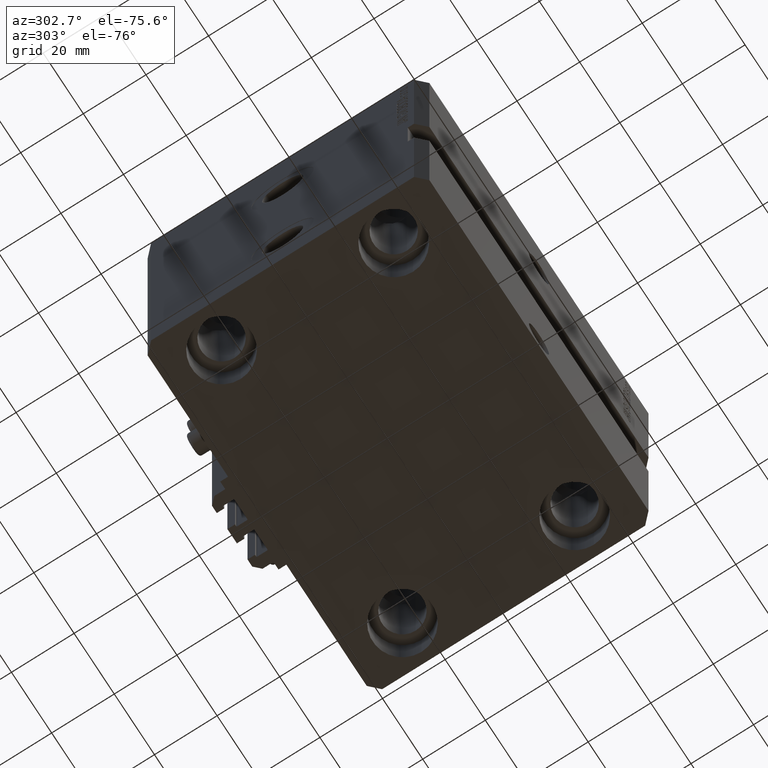
[diagram: clean part render]
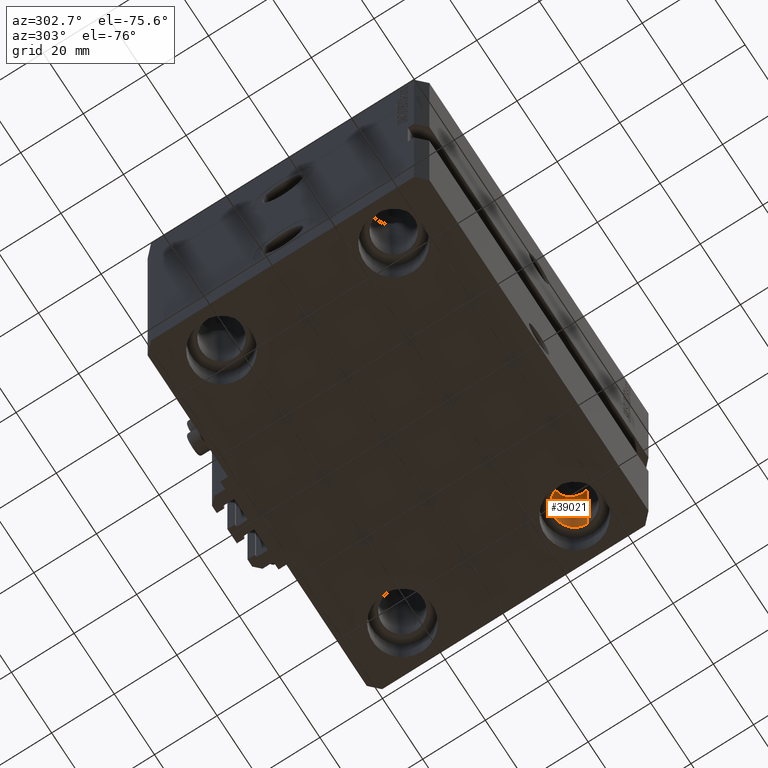
[diagram: same view with one face highlighted and labeled with its STEP entity id]
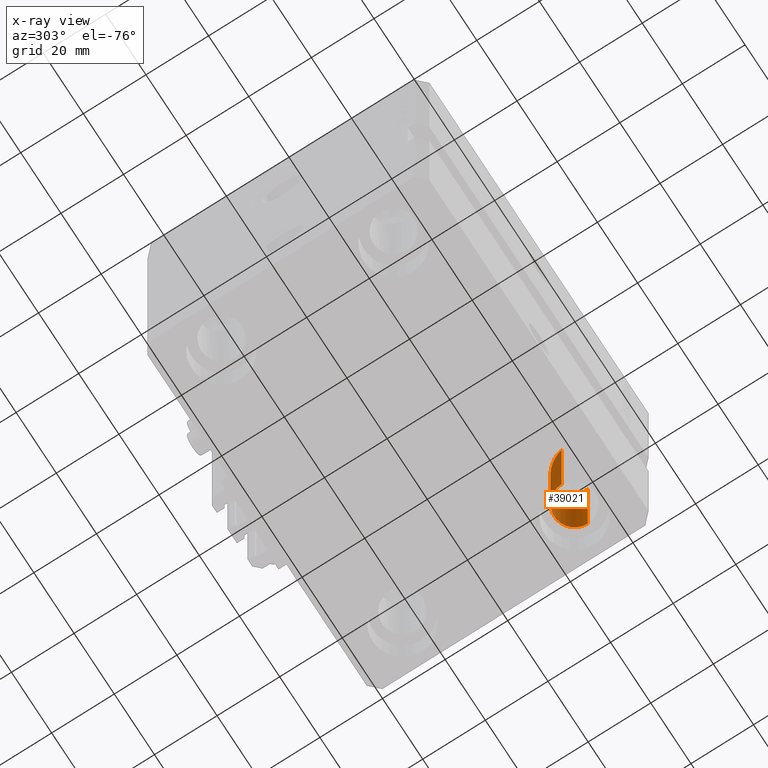
[diagram: x-ray of the same camera — body ghosted, the highlighted face saturated]
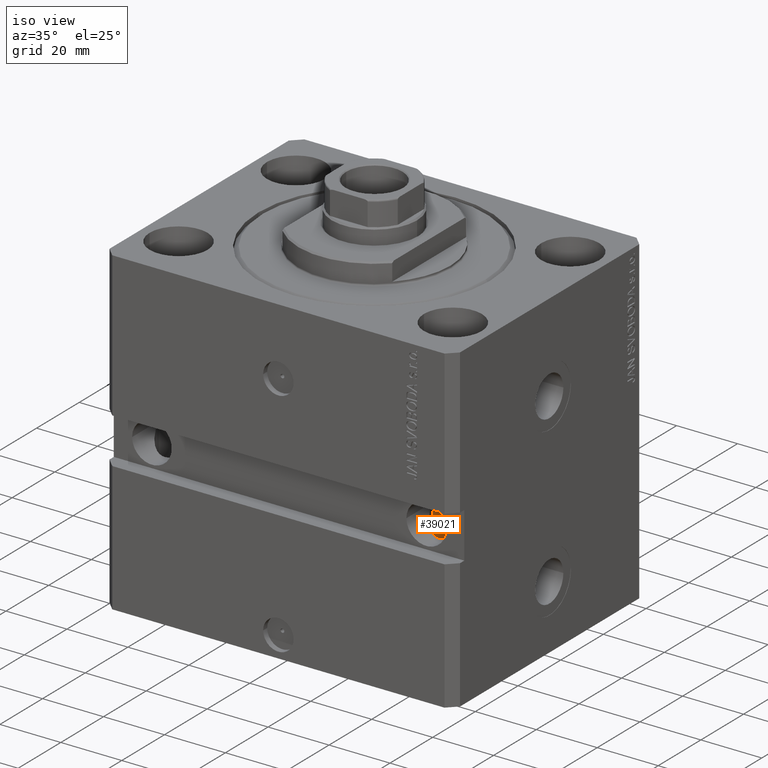
[diagram: same view with one face highlighted and labeled with its STEP entity id]
A machine part, auxiliary view. The second image highlights one B-rep face of the part: STEP entity #39021.
The next image is the same camera in x-ray: the body ghosted, the highlighted face saturated — about 18% of this face is hidden behind the body in this view.
A second angle (iso view) of the same face is appended — the face is thin or edge-on in the first view.
In plain terms, the highlighted cylindrical surface (edge-blend (fillet) strip) has radius 6.5 mm, axis along (0, 0, 1).
Its self-contained STEP definition (entity closure, byte-faithful):
#1156 = CARTESIAN_POINT ( 'NONE',  ( 38.50000000000000711, -27.49999999999999645, -55.00000000000000000 ) ) ;
#1760 = FACE_OUTER_BOUND ( 'NONE', #30433, .T. ) ;
#3399 = EDGE_CURVE ( 'NONE', #9285, #13367, #23253, .T. ) ;
#9023 = LINE ( 'NONE', #39851, #24960 ) ;
#9285 = VERTEX_POINT ( 'NONE', #26001 ) ;
#10684 = CARTESIAN_POINT ( 'NONE',  ( 51.50000000000000000, -27.49999999999999645, -105.0000000000000000 ) ) ;
#12322 = ORIENTED_EDGE ( 'NONE', *, *, #45980, .F. ) ;
#13367 = VERTEX_POINT ( 'NONE', #44485 ) ;
#13819 = EDGE_CURVE ( 'NONE', #21240, #19446, #22532, .T. ) ;
#16688 = CARTESIAN_POINT ( 'NONE',  ( 45.00000000000000000, -27.49999999999999645, -105.0000000000000000 ) ) ;
#18538 = CARTESIAN_POINT ( 'NONE',  ( 45.00000000000000000, -27.49999999999999645, -92.00000000000000000 ) ) ;
#19446 = VERTEX_POINT ( 'NONE', #29395 ) ;
#21240 = VERTEX_POINT ( 'NONE', #40799 ) ;
#22322 = AXIS2_PLACEMENT_3D ( 'NONE', #16688, #28135, #43298 ) ;
#22532 = CIRCLE ( 'NONE', #28113, 6.499999999999999112 ) ;
#23253 =( BOUNDED_CURVE ( )  B_SPLINE_CURVE ( 3, ( #35247, #31993, #24029, #1156 ),
 .UNSPECIFIED., .F., .F. ) 
 B_SPLINE_CURVE_WITH_KNOTS ( ( 4, 4 ),
 ( 1.570796326794896558, 4.712388980384689674 ),
 .UNSPECIFIED. ) 
 CURVE ( )  GEOMETRIC_REPRESENTATION_ITEM ( )  RATIONAL_B_SPLINE_CURVE ( ( 1.000000000000000000, 0.3333333333333333703, 0.3333333333333333703, 1.000000000000000000 ) ) 
 REPRESENTATION_ITEM ( '' )  );
#24029 = CARTESIAN_POINT ( 'NONE',  ( 38.50000000000000711, -14.49999999999999822, -68.00000000000000000 ) ) ;
#24960 = VECTOR ( 'NONE', #36627, 1000.000000000000000 ) ;
#25860 = DIRECTION ( 'NONE',  ( -0.000000000000000000, -0.000000000000000000, 1.000000000000000000 ) ) ;
#26001 = CARTESIAN_POINT ( 'NONE',  ( 51.50000000000000711, -27.49999999999999645, -55.00000000000000000 ) ) ;
#28113 = AXIS2_PLACEMENT_3D ( 'NONE', #18538, #38161, #48651 ) ;
#28135 = DIRECTION ( 'NONE',  ( -0.000000000000000000, -0.000000000000000000, 1.000000000000000000 ) ) ;
#29395 = CARTESIAN_POINT ( 'NONE',  ( 51.50000000000000000, -27.49999999999999645, -92.00000000000000000 ) ) ;
#29562 = ORIENTED_EDGE ( 'NONE', *, *, #3399, .T. ) ;
#30433 = EDGE_LOOP ( 'NONE', ( #12322, #31524, #37305, #29562 ) ) ;
#31524 = ORIENTED_EDGE ( 'NONE', *, *, #13819, .T. ) ;
#31993 = CARTESIAN_POINT ( 'NONE',  ( 51.50000000000000711, -14.49999999999999822, -68.00000000000000000 ) ) ;
#35247 = CARTESIAN_POINT ( 'NONE',  ( 51.50000000000000711, -27.49999999999999645, -55.00000000000000000 ) ) ;
#35607 = CYLINDRICAL_SURFACE ( 'NONE', #22322, 6.499999999999999112 ) ;
#36627 = DIRECTION ( 'NONE',  ( -0.000000000000000000, -0.000000000000000000, 1.000000000000000000 ) ) ;
#37305 = ORIENTED_EDGE ( 'NONE', *, *, #46568, .T. ) ;
#38161 = DIRECTION ( 'NONE',  ( 0.000000000000000000, 0.000000000000000000, -1.000000000000000000 ) ) ;
#39021 = ADVANCED_FACE ( 'NONE', ( #1760 ), #35607, .F. ) ;
#39851 = CARTESIAN_POINT ( 'NONE',  ( 38.50000000000000000, -27.49999999999999645, -105.0000000000000000 ) ) ;
#40799 = CARTESIAN_POINT ( 'NONE',  ( 38.50000000000000000, -27.49999999999999645, -92.00000000000000000 ) ) ;
#43298 = DIRECTION ( 'NONE',  ( 1.000000000000000000, 0.000000000000000000, 0.000000000000000000 ) ) ;
#44485 = CARTESIAN_POINT ( 'NONE',  ( 38.50000000000000711, -27.49999999999999645, -55.00000000000000000 ) ) ;
#45980 = EDGE_CURVE ( 'NONE', #21240, #13367, #9023, .T. ) ;
#46568 = EDGE_CURVE ( 'NONE', #19446, #9285, #48255, .T. ) ;
#47212 = VECTOR ( 'NONE', #25860, 1000.000000000000000 ) ;
#48255 = LINE ( 'NONE', #10684, #47212 ) ;
#48651 = DIRECTION ( 'NONE',  ( -1.000000000000000000, 0.000000000000000000, 0.000000000000000000 ) ) ;